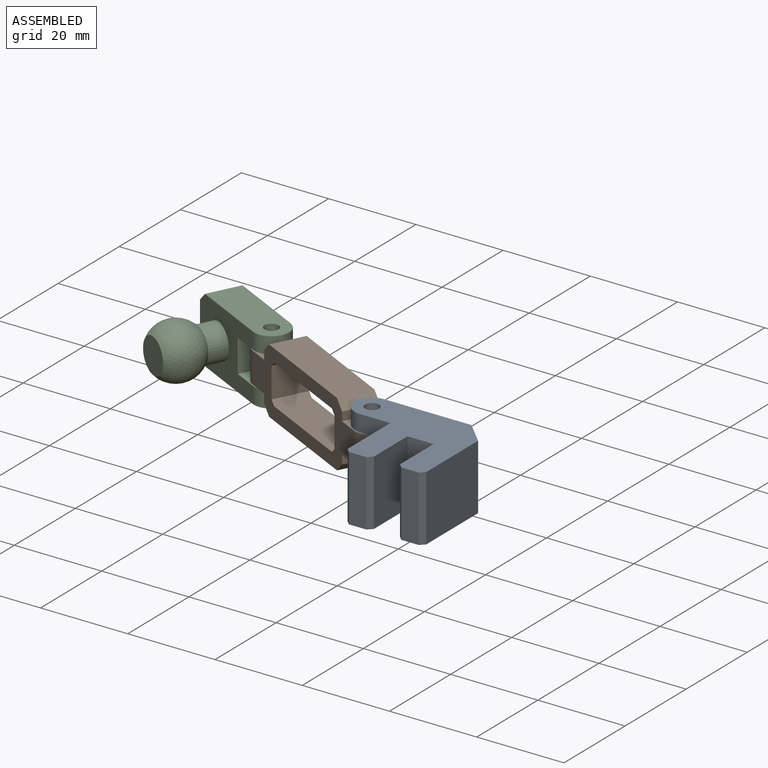
[diagram: assembled view]
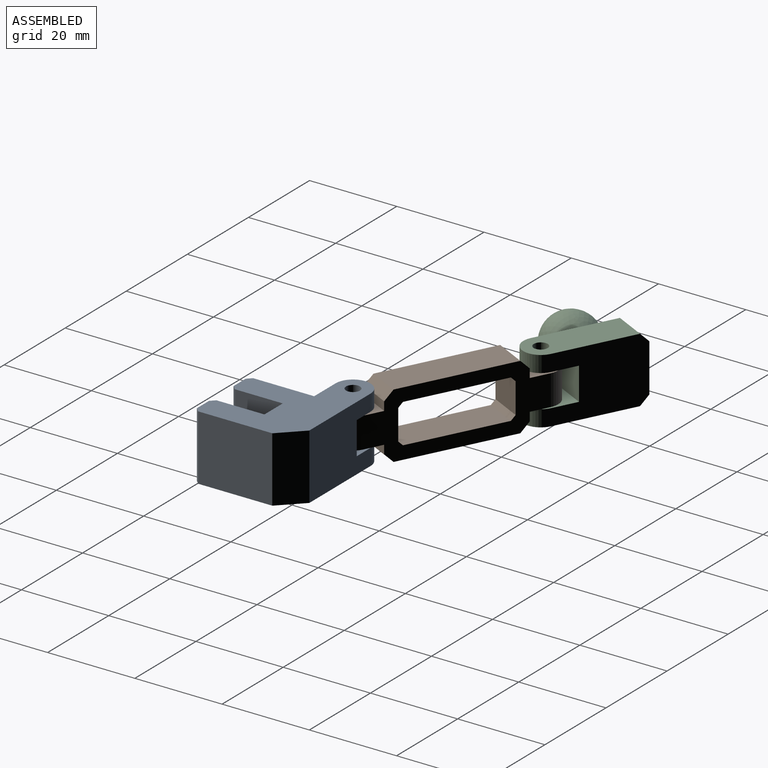
[diagram: assembled view, second angle]
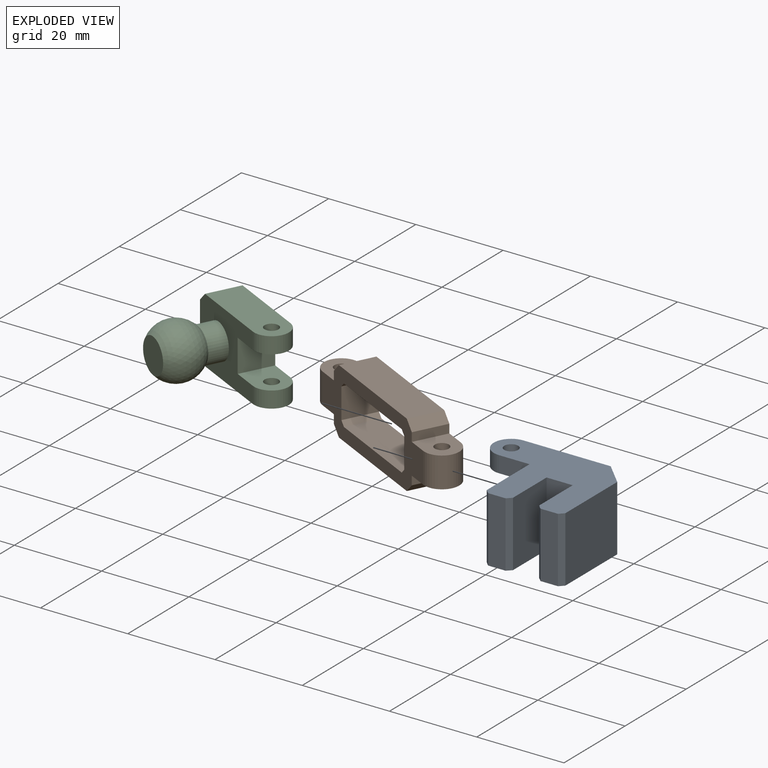
[diagram: exploded view]
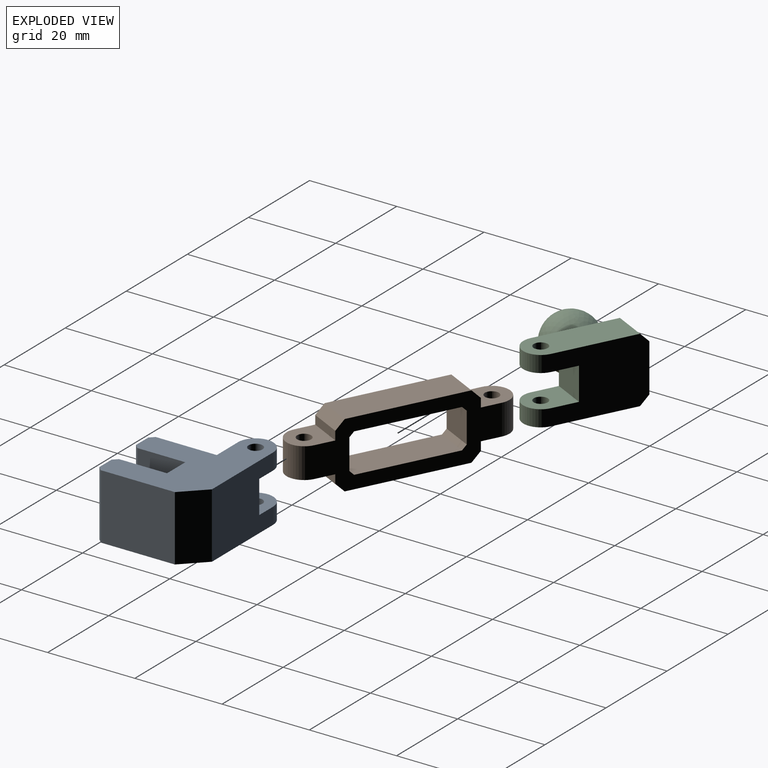
[diagram: exploded view, second angle]
ASSEMBLY  parts=3 mates=2
PART A: 23 faces, bbox 29x23x15 mm
  f0: plane 15x7mm, normal (0,-1,0), area 71.2mm2, adj f2,f4,f7,f8,f9,f10,f11,f12
  f1: plane 20x15mm, normal (0,1,0), area 266.2mm2, adj f2,f4,f7,f8,f9,f10,f11,f18
  f2: cylinder r=4mm len=8mm, axis (0,0,-1), area 47.1mm2, adj f0,f1,f7,f10
  f3: cylinder r=1.6mm len=3.75mm, axis (0,0,-1), area 37.7mm2, adj f7,f10
  f4: cylinder r=4mm len=8mm, axis (0,0,-1), area 47.1mm2, adj f0,f1,f8,f9
  f5: cylinder r=1.6mm len=3.75mm, axis (0,0,-1), area 37.7mm2, adj f8,f9
  f6: plane 17x15mm, normal (1,0,0), area 255mm2, adj f7,f8,f18,f19
  f7: plane 29x23mm, normal (0,0,1), area 400.6mm2, adj f0,f1,f2,f3,f6,f12,f13,f14
  f8: plane 29x23mm, normal (0,0,-1), area 400.6mm2, adj f0,f1,f4,f5,f6,f12,f13,f14
  f9: plane 8.5x8mm, normal (0,0,1), area 53.1mm2, adj f0,f1,f4,f5,f11
  f10: plane 8.5x8mm, normal (0,0,-1), area 53.1mm2, adj f0,f1,f2,f3,f11
  f11: plane 8x7.5mm, normal (-1,0,0), area 60mm2, adj f0,f1,f9,f10
  f12: plane 15x14mm, normal (-1,0,0), area 210mm2, adj f0,f7,f8,f20
  f13: plane 15x4mm, normal (0,-1,0), area 60mm2, adj f7,f8,f20,f22
  f14: plane 15x11mm, normal (1,0,0), area 165mm2, adj f7,f8,f15,f22
  f15: plane 15x6mm, normal (0,-1,0), area 90mm2, adj f7,f8,f14,f16
  f16: plane 15x11mm, normal (-1,0,0), area 165mm2, adj f7,f8,f15,f21
  f17: plane 15x4mm, normal (0,-1,0), area 60mm2, adj f7,f8,f19,f21
  f18: plane 15x5mm, normal (0.71,0.71,0), area 106.1mm2, adj f1,f6,f7,f8
  f19: plane 15x1mm, normal (0.71,-0.71,0), area 21.2mm2, adj f6,f7,f8,f17
  f20: plane 15x1mm, normal (-0.71,-0.71,0), area 21.2mm2, adj f7,f8,f12,f13
  f21: plane 15x1mm, normal (-0.71,-0.71,0), area 21.2mm2, adj f7,f8,f16,f17
  f22: plane 15x1mm, normal (0.71,-0.71,0), area 21.2mm2, adj f7,f8,f13,f14
PART B: 28 faces, bbox 48x8x15 mm
  f0: plane 27x8mm, normal (0,0,-1), area 216mm2, adj f4,f5,f16,f18
  f1: cylinder r=4mm len=8mm, axis (0,0,-1), area 88mm2, adj f4,f5,f11,f13
  f2: plane 27x8mm, normal (0,0,1), area 216mm2, adj f4,f5,f17,f19
  f3: cylinder r=4mm len=8mm, axis (0,0,-1), area 88mm2, adj f4,f5,f6,f8
  f4: plane 40x15mm, normal (0,-1,0), area 297mm2, adj f0,f1,f2,f3,f6,f7,f8,f9
  f5: plane 40x15mm, normal (0,1,0), area 297mm2, adj f0,f1,f2,f3,f6,f7,f8,f9
  f6: plane 8.5x8mm, normal (0,0,-1), area 53.1mm2, adj f3,f4,f5,f7,f10
  f7: plane 8x2mm, normal (1,0,0), area 16mm2, adj f4,f5,f6,f16
  f8: plane 8.5x8mm, normal (0,0,1), area 53.1mm2, adj f3,f4,f5,f9,f10
  f9: plane 8x2mm, normal (1,0,0), area 16mm2, adj f4,f5,f8,f17
  f10: cylinder r=1.6mm len=7mm, axis (0,0,-1), area 70.4mm2, adj f6,f8
  f11: plane 8.5x8mm, normal (0,0,1), area 53.1mm2, adj f1,f4,f5,f12,f15
  f12: plane 8x2mm, normal (-1,0,0), area 16mm2, adj f4,f5,f11,f19
  f13: plane 8.5x8mm, normal (0,0,-1), area 53.1mm2, adj f1,f4,f5,f14,f15
  f14: plane 8x2mm, normal (-1,0,0), area 16mm2, adj f4,f5,f13,f18
  f15: cylinder r=1.6mm len=7mm, axis (0,0,-1), area 70.4mm2, adj f11,f13
  f16: plane 8x2mm, normal (0.71,0,-0.71), area 22.6mm2, adj f0,f4,f5,f7
  f17: plane 8x2mm, normal (0.71,0,0.71), area 22.6mm2, adj f2,f4,f5,f9
  f18: plane 8x2mm, normal (-0.71,0,-0.71), area 22.6mm2, adj f0,f4,f5,f14
  f19: plane 8x2mm, normal (-0.71,0,0.71), area 22.6mm2, adj f2,f4,f5,f12
  f20: plane 8x1mm, normal (0.71,0,-0.71), area 11.3mm2, adj f4,f5,f21,f25
  f21: plane 8x7mm, normal (1,0,0), area 56mm2, adj f4,f5,f20,f22
  f22: plane 8x1mm, normal (0.71,0,0.71), area 11.3mm2, adj f4,f5,f21,f23
  f23: plane 23x8mm, normal (0,0,1), area 184mm2, adj f4,f5,f22,f24
  f24: plane 8x1mm, normal (-0.71,0,0.71), area 11.3mm2, adj f4,f5,f23,f26
  f25: plane 23x8mm, normal (0,0,-1), area 184mm2, adj f4,f5,f20,f27
  f26: plane 8x7mm, normal (-1,0,0), area 56mm2, adj f4,f5,f24,f27
  f27: plane 8x1mm, normal (-0.71,0,-0.71), area 11.3mm2, adj f4,f5,f25,f26
PART C: 17 faces, bbox 25x22x15 mm
  f0: cylinder r=4mm len=8mm, axis (0,0,-1), area 47.1mm2, adj f3,f4,f8,f13
  f1: cylinder r=4mm len=8mm, axis (0,0,-1), area 47.1mm2, adj f3,f4,f7,f12
  f2: cylinder r=1.6mm len=3.75mm, axis (0,0,-1), area 37.7mm2, adj f7,f12
  f3: plane 21x15mm, normal (0,-1,0), area 215.7mm2, adj f0,f1,f6,f7,f8,f11,f12,f13
  f4: plane 21x15mm, normal (0,1,0), area 266mm2, adj f0,f1,f6,f7,f8,f12,f13,f14
  f5: cylinder r=1.6mm len=3.75mm, axis (0,0,-1), area 37.7mm2, adj f8,f13
  f6: plane 11x8mm, normal (-1,0,0), area 88mm2, adj f3,f4,f15,f16
  f7: plane 23x8mm, normal (0,0,1), area 169.1mm2, adj f1,f2,f3,f4,f16
  f8: plane 23x8mm, normal (0,0,-1), area 169.1mm2, adj f0,f3,f4,f5,f15
  f9: plane 8x8mm, normal (0,-1,0), area 50.3mm2, adj f10
  f10: sphere r=6.25mm, area 377.2mm2, adj f9,f11
  f11: cylinder r=4mm len=8mm, axis (0,1,0), area 110.5mm2, adj f3,f10
  f12: plane 10x8mm, normal (0,0,-1), area 65.1mm2, adj f1,f2,f3,f4,f14
  f13: plane 10x8mm, normal (0,0,1), area 65.1mm2, adj f0,f3,f4,f5,f14
  f14: plane 8x7.5mm, normal (1,0,0), area 60mm2, adj f3,f4,f12,f13
  f15: plane 8x2mm, normal (-0.71,0,-0.71), area 22.6mm2, adj f3,f4,f6,f8
  f16: plane 8x2mm, normal (-0.71,0,0.71), area 22.6mm2, adj f3,f4,f6,f7
PLACE A at identity fixed
PLACE B rot(axis=(0,0,-1),26.8deg) t=(-17.85,9.03,0)mm
PLACE C rot(axis=(0,0,-1),26.8deg) t=(-35.69,18.05,0)mm
MATE revolute C.f2 <-> B.f1  axis (0,0,1) through (-35.69,18.05,3.75)mm
MATE revolute B.f10 <-> A.f2  axis (0,0,1) through (0,0,11)mm
